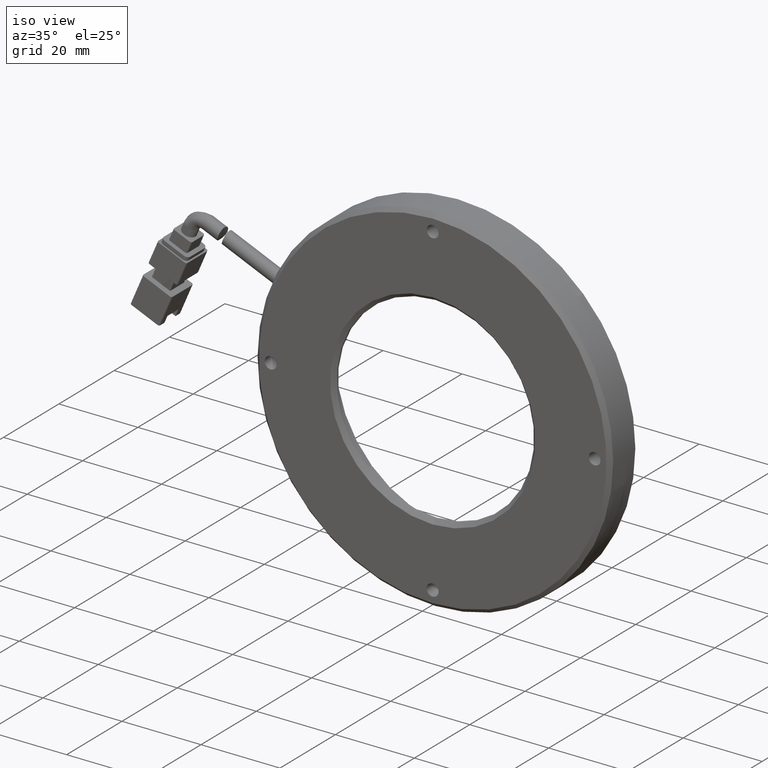
[diagram: clean part render]
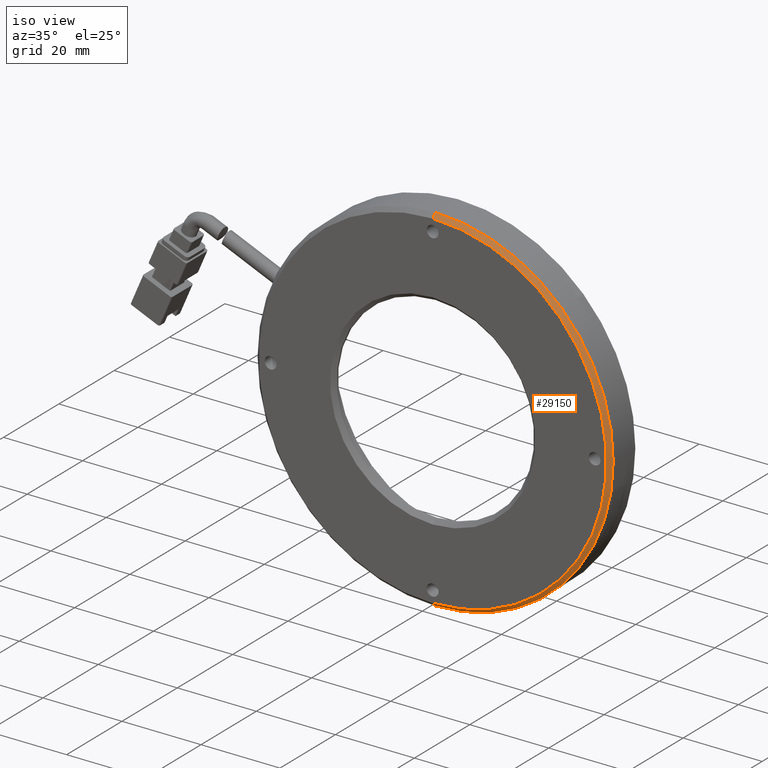
[diagram: same view with one face highlighted and labeled with its STEP entity id]
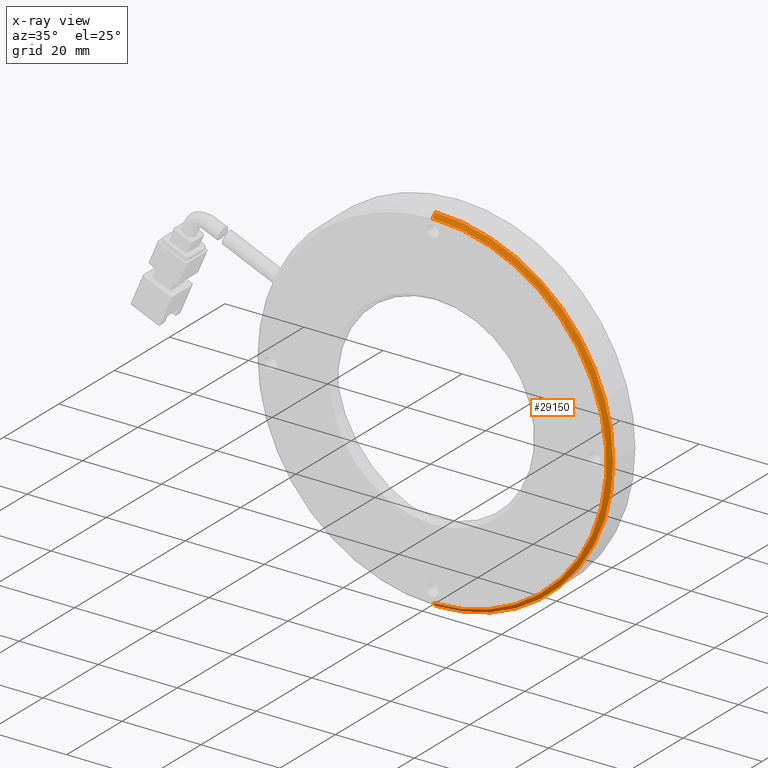
[diagram: x-ray of the same camera — body ghosted, the highlighted face saturated]
A machine part, iso view. The second image highlights one B-rep face of the part: STEP entity #29150.
The next image is the same camera in x-ray: the body ghosted, the highlighted face saturated — about 0% of this face is hidden behind the body in this view.
In plain terms, the highlighted conical surface has half-angle 45 deg.
Its self-contained STEP definition (entity closure, byte-faithful):
#517 = CARTESIAN_POINT ( 'NONE',  ( 3.571428571428565800, -1.376447876447878900, 0.0000000000000000000 ) ) ;
#3686 = DIRECTION ( 'NONE',  ( 0.0000000000000000000, 0.0000000000000000000, 1.000000000000000000 ) ) ;
#6621 = CARTESIAN_POINT ( 'NONE',  ( 3.571428571428571200, -0.3764478764478641500, 45.00000000000000000 ) ) ;
#7031 = CIRCLE ( 'NONE', #20327, 44.00000000000000000 ) ;
#7073 = CARTESIAN_POINT ( 'NONE',  ( 3.571428571428565800, -0.3764478764478641500, -45.00000000000000000 ) ) ;
#8048 = DIRECTION ( 'NONE',  ( -0.0000000000000000000, -1.000000000000000000, -0.0000000000000000000 ) ) ;
#9549 = EDGE_CURVE ( 'NONE', #27303, #24598, #7031, .T. ) ;
#11411 = LINE ( 'NONE', #36464, #34548 ) ;
#11511 = DIRECTION ( 'NONE',  ( 8.659560562354870000E-017, 0.7071067811865526800, -0.7071067811865423500 ) ) ;
#13940 = DIRECTION ( 'NONE',  ( 0.0000000000000000000, 0.7071067811865526800, 0.7071067811865423500 ) ) ;
#14248 = CIRCLE ( 'NONE', #30403, 44.99999999999999300 ) ;
#16641 = VECTOR ( 'NONE', #13940, 1000.000000000000000 ) ;
#18271 = EDGE_CURVE ( 'NONE', #24598, #21488, #11411, .T. ) ;
#18275 = ORIENTED_EDGE ( 'NONE', *, *, #9549, .T. ) ;
#18548 = DIRECTION ( 'NONE',  ( -0.0000000000000000000, 1.000000000000000000, 0.0000000000000000000 ) ) ;
#19301 = EDGE_CURVE ( 'NONE', #21488, #33458, #14248, .T. ) ;
#19434 = EDGE_LOOP ( 'NONE', ( #18275, #26615, #26560, #36345 ) ) ;
#20327 = AXIS2_PLACEMENT_3D ( 'NONE', #517, #22421, #3686 ) ;
#21485 = CARTESIAN_POINT ( 'NONE',  ( 3.571428571428570700, -1.376447876447878900, -44.00000000000000000 ) ) ;
#21488 = VERTEX_POINT ( 'NONE', #7073 ) ;
#22421 = DIRECTION ( 'NONE',  ( -0.0000000000000000000, 1.000000000000000000, 0.0000000000000000000 ) ) ;
#24109 = CONICAL_SURFACE ( 'NONE', #38377, 45.00000000000000000, 0.7853981633974410600 ) ;
#24598 = VERTEX_POINT ( 'NONE', #21485 ) ;
#25584 = DIRECTION ( 'NONE',  ( 0.0000000000000000000, 0.0000000000000000000, 1.000000000000000000 ) ) ;
#26560 = ORIENTED_EDGE ( 'NONE', *, *, #19301, .T. ) ;
#26615 = ORIENTED_EDGE ( 'NONE', *, *, #18271, .T. ) ;
#26867 = CARTESIAN_POINT ( 'NONE',  ( 3.571428571428565800, -0.3764478764478641500, 0.0000000000000000000 ) ) ;
#27303 = VERTEX_POINT ( 'NONE', #35810 ) ;
#29150 = ADVANCED_FACE ( 'NONE', ( #36484 ), #24109, .T. ) ;
#30049 = DIRECTION ( 'NONE',  ( 0.0000000000000000000, 3.373073425510458600E-017, 1.000000000000000000 ) ) ;
#30403 = AXIS2_PLACEMENT_3D ( 'NONE', #26867, #8048, #30049 ) ;
#31233 = CARTESIAN_POINT ( 'NONE',  ( 3.571428571428565800, -0.3764478764478635400, 0.0000000000000000000 ) ) ;
#32816 = CARTESIAN_POINT ( 'NONE',  ( 3.571428571428565800, -0.3764478764478635400, 45.00000000000000000 ) ) ;
#33443 = LINE ( 'NONE', #32816, #16641 ) ;
#33458 = VERTEX_POINT ( 'NONE', #6621 ) ;
#34548 = VECTOR ( 'NONE', #11511, 1000.000000000000000 ) ;
#35810 = CARTESIAN_POINT ( 'NONE',  ( 3.571428571428565800, -1.376447876447878900, 44.00000000000000000 ) ) ;
#36345 = ORIENTED_EDGE ( 'NONE', *, *, #36548, .F. ) ;
#36464 = CARTESIAN_POINT ( 'NONE',  ( 3.571428571428571200, -0.3764478764478635400, -45.00000000000000000 ) ) ;
#36484 = FACE_OUTER_BOUND ( 'NONE', #19434, .T. ) ;
#36548 = EDGE_CURVE ( 'NONE', #27303, #33458, #33443, .T. ) ;
#38377 = AXIS2_PLACEMENT_3D ( 'NONE', #31233, #18548, #25584 ) ;